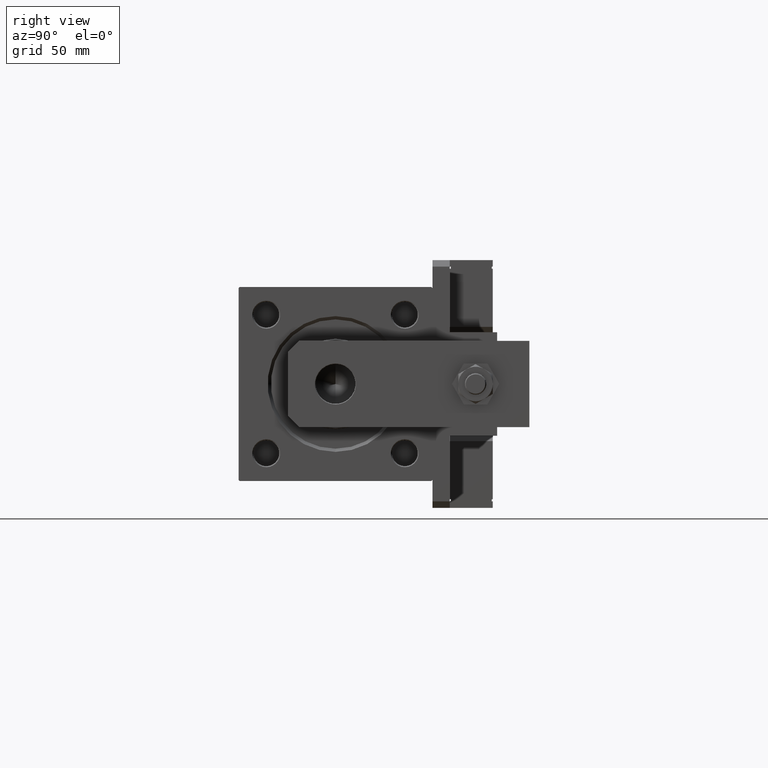
[diagram: clean part render]
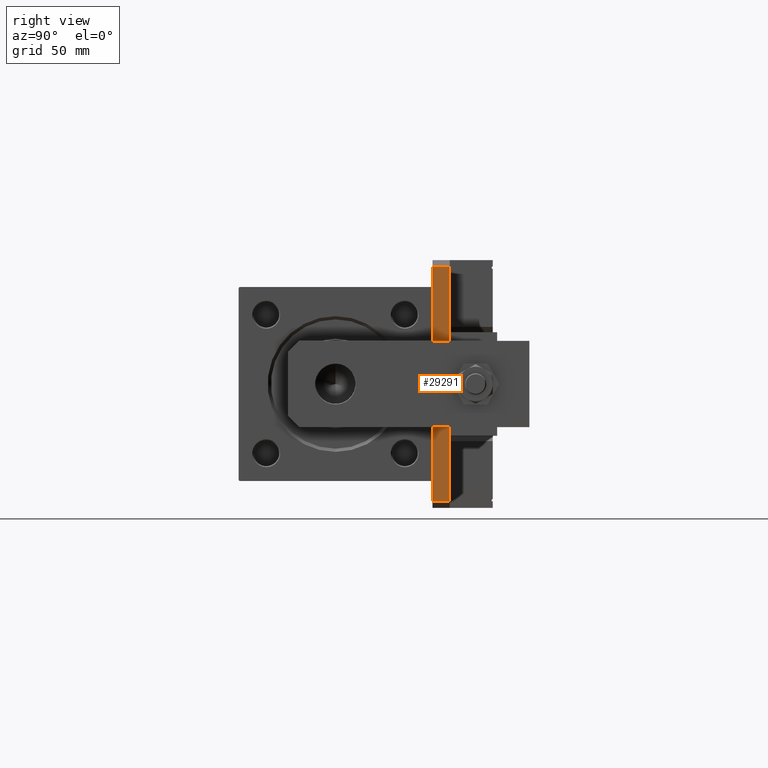
[diagram: same view with one face highlighted and labeled with its STEP entity id]
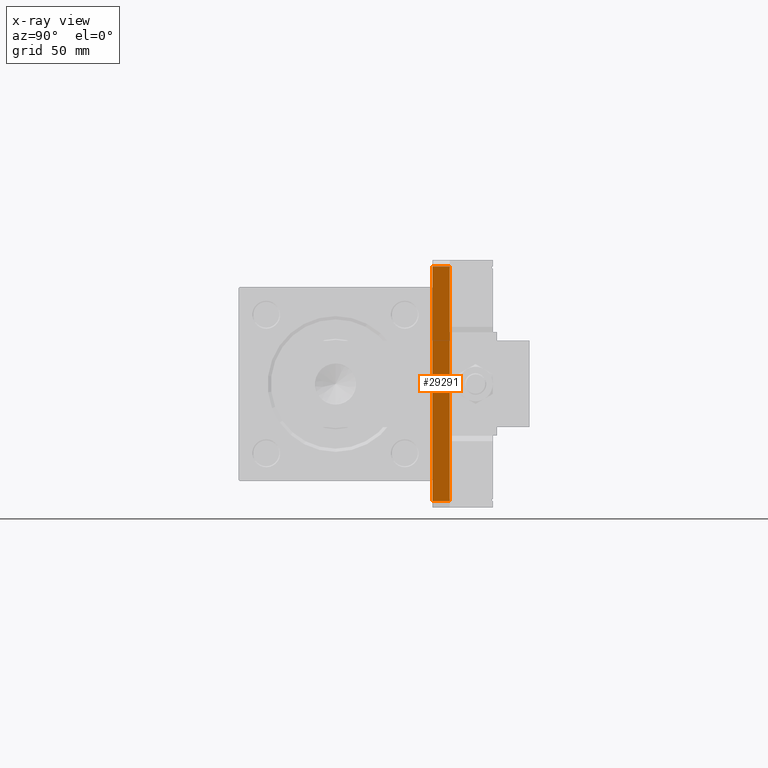
[diagram: x-ray of the same camera — body ghosted, the highlighted face saturated]
A machine part, right view. The second image highlights one B-rep face of the part: STEP entity #29291.
The next image is the same camera in x-ray: the body ghosted, the highlighted face saturated — about 0% of this face is hidden behind the body in this view.
In plain terms, the highlighted planar face has unit normal (-1, 0, 0).
Its self-contained STEP definition (entity closure, byte-faithful):
#817 = ORIENTED_EDGE ( 'NONE', *, *, #35342, .F. ) ;
#4766 = EDGE_CURVE ( 'NONE', #55283, #25974, #38246, .T. ) ;
#7243 = DIRECTION ( 'NONE',  ( 0.000000000000000000, 1.000000000000000000, 0.000000000000000000 ) ) ;
#7528 = PLANE ( 'NONE',  #38718 ) ;
#9341 = DIRECTION ( 'NONE',  ( 1.000000000000000000, 0.000000000000000000, 0.000000000000000000 ) ) ;
#9576 = VECTOR ( 'NONE', #36437, 1000.000000000000000 ) ;
#11876 = VECTOR ( 'NONE', #38800, 1000.000000000000000 ) ;
#12711 = LINE ( 'NONE', #16401, #27182 ) ;
#16401 = CARTESIAN_POINT ( 'NONE',  ( 2.999999999999975131, 0.000000000000000000, 8.000000000000000000 ) ) ;
#19690 = VECTOR ( 'NONE', #9341, 1000.000000000000000 ) ;
#20636 = DIRECTION ( 'NONE',  ( 0.000000000000000000, 0.000000000000000000, -1.000000000000000000 ) ) ;
#20713 = VERTEX_POINT ( 'NONE', #49779 ) ;
#21261 = ORIENTED_EDGE ( 'NONE', *, *, #43721, .T. ) ;
#23929 = CARTESIAN_POINT ( 'NONE',  ( 0.000000000000000000, 0.000000000000000000, 8.000000000000000000 ) ) ;
#24539 = EDGE_LOOP ( 'NONE', ( #21261, #36037, #817, #35988 ) ) ;
#25974 = VERTEX_POINT ( 'NONE', #28691 ) ;
#27182 = VECTOR ( 'NONE', #20636, 1000.000000000000000 ) ;
#28691 = CARTESIAN_POINT ( 'NONE',  ( 111.9999999999999858, 0.000000000000000000, 8.000000000000000000 ) ) ;
#29291 = ADVANCED_FACE ( 'NONE', ( #49949 ), #7528, .F. ) ;
#31378 = CARTESIAN_POINT ( 'NONE',  ( 0.000000000000000000, 0.000000000000000000, 0.000000000000000000 ) ) ;
#32699 = DIRECTION ( 'NONE',  ( 0.000000000000000000, -0.000000000000000000, 1.000000000000000000 ) ) ;
#34218 = VERTEX_POINT ( 'NONE', #47559 ) ;
#35342 = EDGE_CURVE ( 'NONE', #34218, #25974, #39629, .T. ) ;
#35988 = ORIENTED_EDGE ( 'NONE', *, *, #50270, .T. ) ;
#36037 = ORIENTED_EDGE ( 'NONE', *, *, #4766, .T. ) ;
#36437 = DIRECTION ( 'NONE',  ( 1.000000000000000000, 0.000000000000000000, 0.000000000000000000 ) ) ;
#38246 = LINE ( 'NONE', #51526, #11876 ) ;
#38718 = AXIS2_PLACEMENT_3D ( 'NONE', #23929, #7243, #32699 ) ;
#38800 = DIRECTION ( 'NONE',  ( 0.000000000000000000, 0.000000000000000000, 1.000000000000000000 ) ) ;
#39629 = LINE ( 'NONE', #52356, #9576 ) ;
#43721 = EDGE_CURVE ( 'NONE', #20713, #55283, #48629, .T. ) ;
#47559 = CARTESIAN_POINT ( 'NONE',  ( 2.999999999999975131, 0.000000000000000000, 8.000000000000000000 ) ) ;
#48115 = CARTESIAN_POINT ( 'NONE',  ( 111.9999999999999858, 0.000000000000000000, 0.000000000000000000 ) ) ;
#48629 = LINE ( 'NONE', #31378, #19690 ) ;
#49779 = CARTESIAN_POINT ( 'NONE',  ( 2.999999999999975131, 0.000000000000000000, 0.000000000000000000 ) ) ;
#49949 = FACE_OUTER_BOUND ( 'NONE', #24539, .T. ) ;
#50270 = EDGE_CURVE ( 'NONE', #34218, #20713, #12711, .T. ) ;
#51526 = CARTESIAN_POINT ( 'NONE',  ( 111.9999999999999858, 0.000000000000000000, 8.000000000000000000 ) ) ;
#52356 = CARTESIAN_POINT ( 'NONE',  ( 0.000000000000000000, 0.000000000000000000, 8.000000000000000000 ) ) ;
#55283 = VERTEX_POINT ( 'NONE', #48115 ) ;